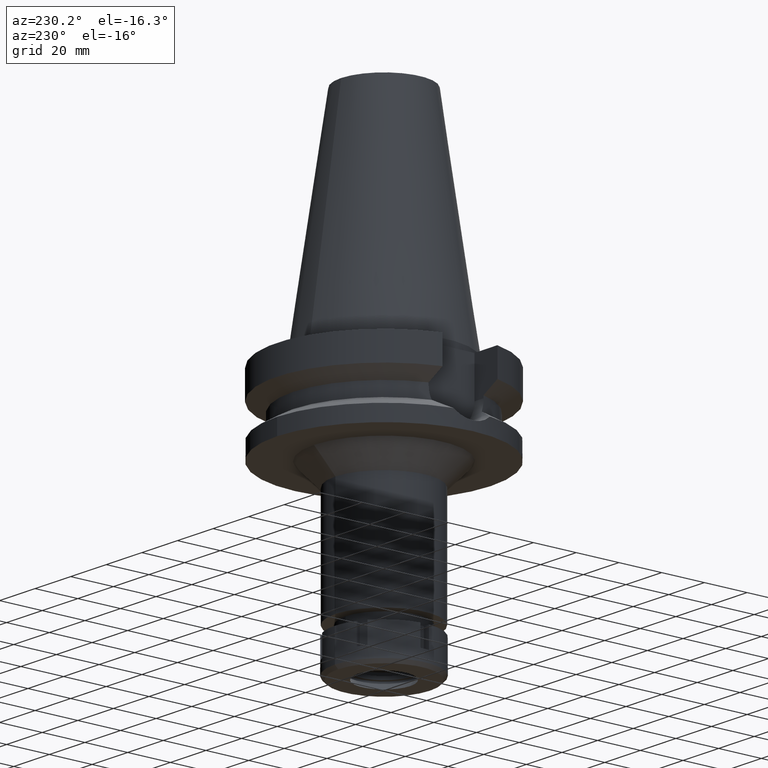
[diagram: clean part render]
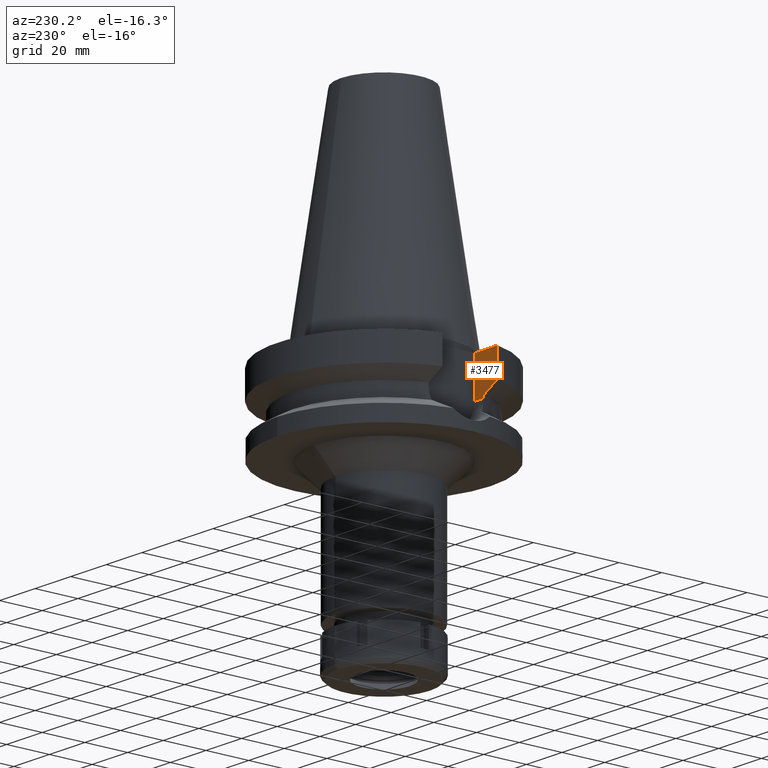
[diagram: same view with one face highlighted and labeled with its STEP entity id]
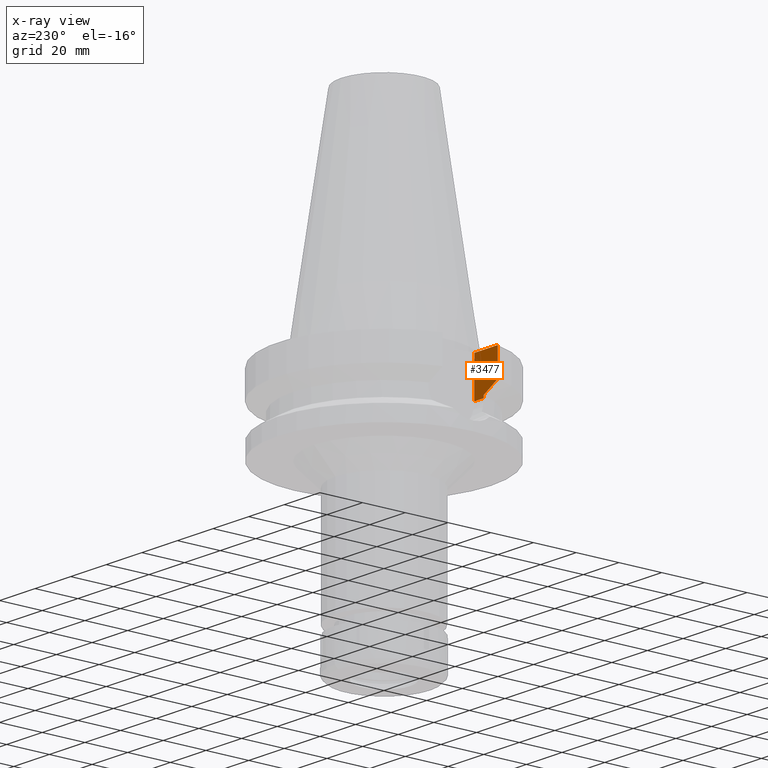
[diagram: x-ray of the same camera — body ghosted, the highlighted face saturated]
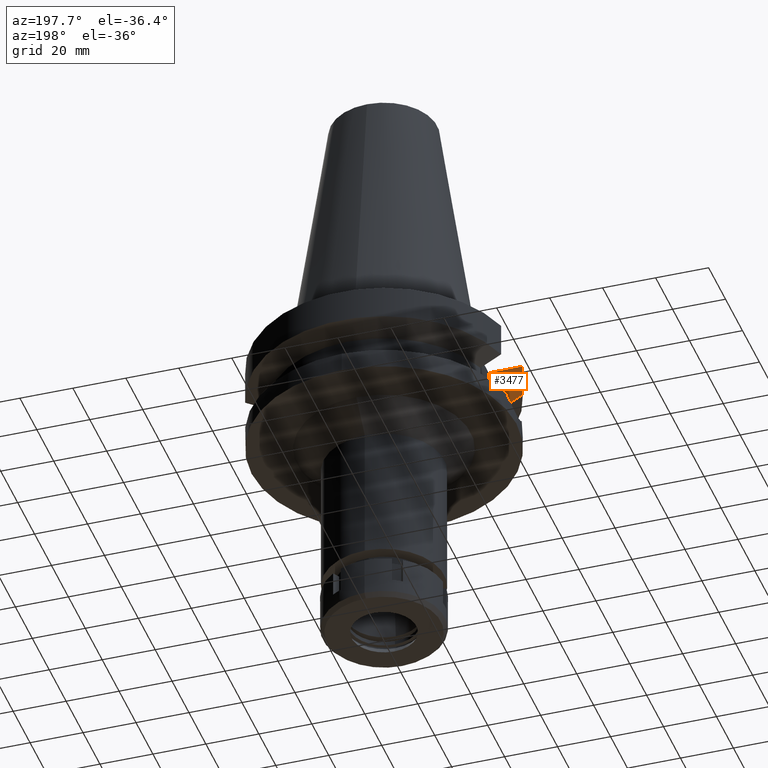
[diagram: same view with one face highlighted and labeled with its STEP entity id]
A machine part, auxiliary view. The second image highlights one B-rep face of the part: STEP entity #3477.
The next image is the same camera in x-ray: the body ghosted, the highlighted face saturated — about 0% of this face is hidden behind the body in this view.
A second angle (auxiliary view) of the same face is appended — the face is thin or edge-on in the first view.
In plain terms, the highlighted planar face has unit normal (0, -1, 0).
Its self-contained STEP definition (entity closure, byte-faithful):
#136 = CARTESIAN_POINT ( 'NONE',  ( -48.32056912872000254, -12.85000385512999976, -15.66265770180999972 ) ) ;
#176 = ORIENTED_EDGE ( 'NONE', *, *, #2916, .F. ) ;
#319 = B_SPLINE_CURVE_WITH_KNOTS ( 'NONE', 3,
 ( #3584, #2991, #1813, #1598 ),
 .UNSPECIFIED., .F., .F.,
 ( 4, 4 ),
 ( 0.0000000000000000000, 1.000000000000000000 ),
 .UNSPECIFIED. ) ;
#414 = DIRECTION ( 'NONE',  ( 0.0000000000000000000, 0.0000000000000000000, -1.000000000000000000 ) ) ;
#505 = DIRECTION ( 'NONE',  ( -9.446680104782181084E-07, 2.978157163070055408E-06, 0.9999999999951191265 ) ) ;
#593 = PLANE ( 'NONE',  #2155 ) ;
#619 = LINE ( 'NONE', #2103, #2583 ) ;
#631 = VECTOR ( 'NONE', #505, 1000.000000000000114 ) ;
#739 = ORIENTED_EDGE ( 'NONE', *, *, #2129, .T. ) ;
#790 = VECTOR ( 'NONE', #414, 1000.000000000000000 ) ;
#838 = CARTESIAN_POINT ( 'NONE',  ( -48.32056912872000254, -12.85000385512999976, -15.66265770180999972 ) ) ;
#947 = LINE ( 'NONE', #2333, #2101 ) ;
#1024 = LINE ( 'NONE', #136, #3304 ) ;
#1036 = CARTESIAN_POINT ( 'NONE',  ( -35.39999999999999858, -12.84999999999999964, -3.000000000000000000 ) ) ;
#1240 = ORIENTED_EDGE ( 'NONE', *, *, #2008, .T. ) ;
#1526 = DIRECTION ( 'NONE',  ( -1.000000000000000000, 3.440913946376999995E-14, 0.0000000000000000000 ) ) ;
#1559 = EDGE_CURVE ( 'NONE', #2455, #2501, #3066, .T. ) ;
#1598 = CARTESIAN_POINT ( 'NONE',  ( -40.51083297795000249, -12.84999655380999783, -19.99284570174000208 ) ) ;
#1729 = ORIENTED_EDGE ( 'NONE', *, *, #1997, .T. ) ;
#1803 = EDGE_LOOP ( 'NONE', ( #176, #739, #2222, #1240, #1729, #2645 ) ) ;
#1813 = CARTESIAN_POINT ( 'NONE',  ( -42.90862461397772165, -12.84999310060802991, -18.67324796364951212 ) ) ;
#1936 = DIRECTION ( 'NONE',  ( 0.0000000000000000000, 0.0000000000000000000, -1.000000000000000000 ) ) ;
#1973 = FACE_OUTER_BOUND ( 'NONE', #1803, .T. ) ;
#1997 = EDGE_CURVE ( 'NONE', #2804, #2455, #619, .T. ) ;
#2008 = EDGE_CURVE ( 'NONE', #2428, #2804, #2938, .T. ) ;
#2051 = DIRECTION ( 'NONE',  ( -1.000000000000000000, 0.0000000000000000000, 0.0000000000000000000 ) ) ;
#2101 = VECTOR ( 'NONE', #2051, 1000.000000000000000 ) ;
#2103 = CARTESIAN_POINT ( 'NONE',  ( -35.39999999999999858, -12.84999999999999964, -21.14999999999999858 ) ) ;
#2129 = EDGE_CURVE ( 'NONE', #3413, #2559, #1024, .T. ) ;
#2155 = AXIS2_PLACEMENT_3D ( 'NONE', #3435, #3646, #1936 ) ;
#2183 = CARTESIAN_POINT ( 'NONE',  ( -40.51083188481999997, -12.84999999999999964, -21.14999999999999858 ) ) ;
#2222 = ORIENTED_EDGE ( 'NONE', *, *, #3556, .F. ) ;
#2333 = CARTESIAN_POINT ( 'NONE',  ( -35.39999999999999858, -12.84999999999999964, -3.000000000000000000 ) ) ;
#2428 = VERTEX_POINT ( 'NONE', #1036 ) ;
#2455 = VERTEX_POINT ( 'NONE', #2183 ) ;
#2465 = CARTESIAN_POINT ( 'NONE',  ( -40.51083188481999997, -12.84999999999999964, -21.14999999999999858 ) ) ;
#2501 = VERTEX_POINT ( 'NONE', #3536 ) ;
#2559 = VERTEX_POINT ( 'NONE', #3625 ) ;
#2583 = VECTOR ( 'NONE', #1526, 1000.000000000000000 ) ;
#2645 = ORIENTED_EDGE ( 'NONE', *, *, #1559, .T. ) ;
#2737 = DIRECTION ( 'NONE',  ( -8.096275432743604686E-08, 3.044485530590851490E-07, 0.9999999999999504841 ) ) ;
#2804 = VERTEX_POINT ( 'NONE', #3169 ) ;
#2916 = EDGE_CURVE ( 'NONE', #3413, #2501, #319, .T. ) ;
#2938 = LINE ( 'NONE', #3202, #790 ) ;
#2991 = CARTESIAN_POINT ( 'NONE',  ( -45.51179874744461529, -12.85000770561169858, -17.22986720892441070 ) ) ;
#3066 = LINE ( 'NONE', #2465, #631 ) ;
#3169 = CARTESIAN_POINT ( 'NONE',  ( -35.39999999999999858, -12.84999999999999964, -21.14999999999999858 ) ) ;
#3202 = CARTESIAN_POINT ( 'NONE',  ( -35.39999999999999858, -12.84999999999999964, -3.000000000000000000 ) ) ;
#3304 = VECTOR ( 'NONE', #2737, 1000.000000000000000 ) ;
#3413 = VERTEX_POINT ( 'NONE', #838 ) ;
#3435 = CARTESIAN_POINT ( 'NONE',  ( -35.39999999999999858, -12.84999999999999964, -21.14999999999999858 ) ) ;
#3477 = ADVANCED_FACE ( 'NONE', ( #1973 ), #593, .F. ) ;
#3536 = CARTESIAN_POINT ( 'NONE',  ( -40.51083297795000249, -12.84999655380999783, -19.99284570174000208 ) ) ;
#3556 = EDGE_CURVE ( 'NONE', #2428, #2559, #947, .T. ) ;
#3584 = CARTESIAN_POINT ( 'NONE',  ( -48.32056912872000254, -12.85000385512999976, -15.66265770180999972 ) ) ;
#3625 = CARTESIAN_POINT ( 'NONE',  ( -48.32057015392000210, -12.84999999999999964, -3.000000000000000000 ) ) ;
#3646 = DIRECTION ( 'NONE',  ( 0.0000000000000000000, -1.000000000000000000, 0.0000000000000000000 ) ) ;